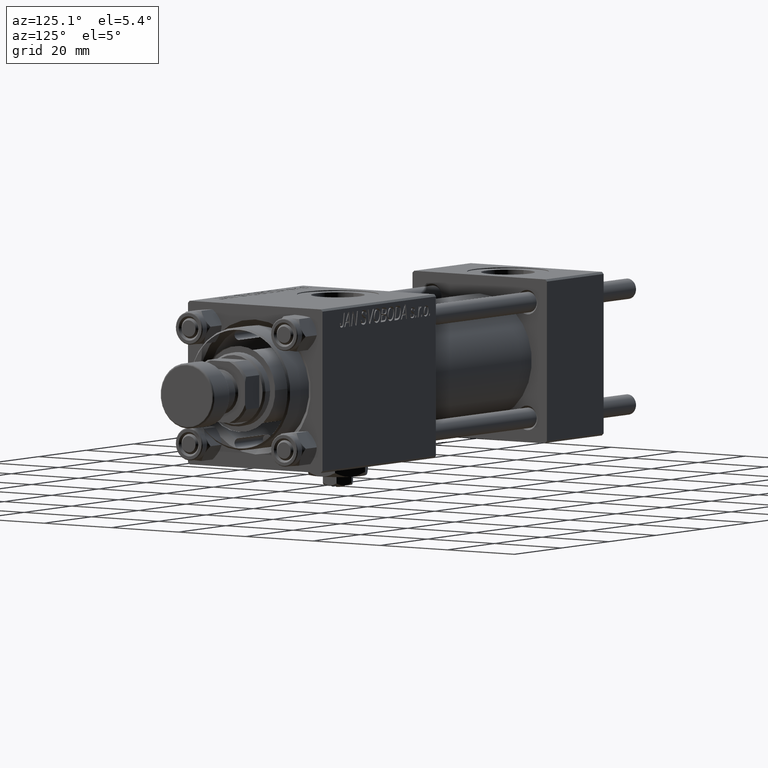
[diagram: clean part render]
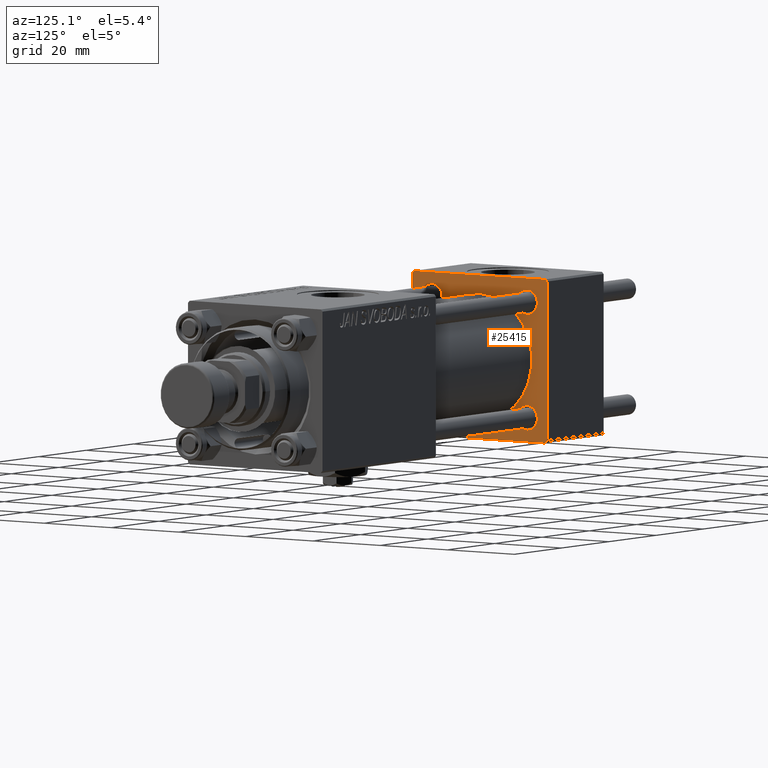
[diagram: same view with one face highlighted and labeled with its STEP entity id]
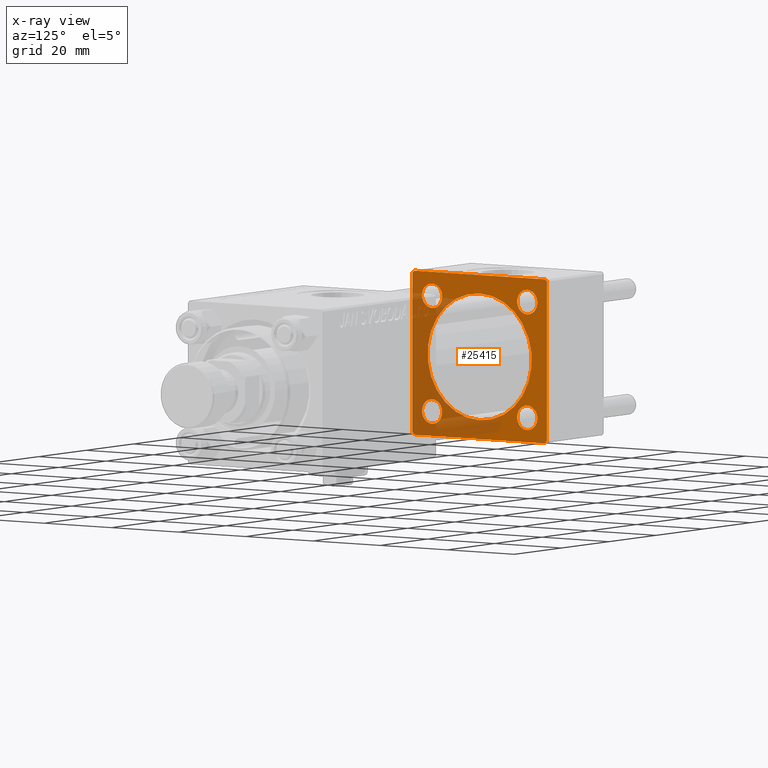
[diagram: x-ray of the same camera — body ghosted, the highlighted face saturated]
A machine part, auxiliary view. The second image highlights one B-rep face of the part: STEP entity #25415.
The next image is the same camera in x-ray: the body ghosted, the highlighted face saturated — about 39% of this face is hidden behind the body in this view.
In plain terms, the highlighted planar face has unit normal (-1, 0, 0).
Its self-contained STEP definition (entity closure, byte-faithful):
#100 = VECTOR ( 'NONE', #8422, 1000.000000000000000 ) ;
#104 = CARTESIAN_POINT ( 'NONE',  ( 24.00000000000000000, 1.898202538678397557E-15, -15.50000000000000000 ) ) ;
#823 = VERTEX_POINT ( 'NONE', #15167 ) ;
#909 = CARTESIAN_POINT ( 'NONE',  ( 24.00000000000000000, 14.14999999999999858, -17.14999999999997726 ) ) ;
#964 = ORIENTED_EDGE ( 'NONE', *, *, #45462, .T. ) ;
#1311 = CARTESIAN_POINT ( 'NONE',  ( 24.00000000000000000, -14.14999999999999503, 14.15000000000000391 ) ) ;
#1431 = LINE ( 'NONE', #5382, #33985 ) ;
#2283 = EDGE_CURVE ( 'NONE', #24229, #8201, #40177, .T. ) ;
#2498 = LINE ( 'NONE', #22729, #16143 ) ;
#2623 = ORIENTED_EDGE ( 'NONE', *, *, #2283, .F. ) ;
#2771 = CIRCLE ( 'NONE', #43944, 2.999999999999976463 ) ;
#3768 = DIRECTION ( 'NONE',  ( -0.000000000000000000, 0.7071067811865524577, 0.7071067811865426878 ) ) ;
#4920 = DIRECTION ( 'NONE',  ( -1.000000000000000000, 0.000000000000000000, -0.000000000000000000 ) ) ;
#5124 = DIRECTION ( 'NONE',  ( 0.000000000000000000, -1.000000000000000000, 1.734723475976807094E-16 ) ) ;
#5177 = FACE_BOUND ( 'NONE', #20168, .T. ) ;
#5213 = ORIENTED_EDGE ( 'NONE', *, *, #50289, .T. ) ;
#5382 = CARTESIAN_POINT ( 'NONE',  ( 24.00000000000000000, 20.00000000000000000, -20.00000000000000711 ) ) ;
#5671 = EDGE_CURVE ( 'NONE', #823, #13284, #14955, .T. ) ;
#5872 = AXIS2_PLACEMENT_3D ( 'NONE', #36185, #43307, #24351 ) ;
#5942 = ORIENTED_EDGE ( 'NONE', *, *, #39097, .T. ) ;
#6604 = DIRECTION ( 'NONE',  ( -1.000000000000000000, -0.000000000000000000, -0.000000000000000000 ) ) ;
#6776 = EDGE_LOOP ( 'NONE', ( #46859, #36655 ) ) ;
#7515 = CIRCLE ( 'NONE', #36903, 3.000000000000000888 ) ;
#7575 = VERTEX_POINT ( 'NONE', #38313 ) ;
#7718 = LINE ( 'NONE', #39786, #49784 ) ;
#8120 = EDGE_LOOP ( 'NONE', ( #30800, #2623 ) ) ;
#8201 = VERTEX_POINT ( 'NONE', #38642 ) ;
#8384 = LINE ( 'NONE', #28109, #39958 ) ;
#8422 = DIRECTION ( 'NONE',  ( 0.000000000000000000, -1.000000000000000000, -2.602085213965210149E-16 ) ) ;
#8436 = ORIENTED_EDGE ( 'NONE', *, *, #37130, .T. ) ;
#9024 = EDGE_CURVE ( 'NONE', #33724, #46362, #7515, .T. ) ;
#9131 = DIRECTION ( 'NONE',  ( -1.000000000000000000, -0.000000000000000000, -0.000000000000000000 ) ) ;
#9301 = AXIS2_PLACEMENT_3D ( 'NONE', #45178, #9131, #25184 ) ;
#9362 = FACE_BOUND ( 'NONE', #8120, .T. ) ;
#9444 = DIRECTION ( 'NONE',  ( -1.000000000000000000, -0.000000000000000000, -0.000000000000000000 ) ) ;
#9998 = VERTEX_POINT ( 'NONE', #13571 ) ;
#10965 = CARTESIAN_POINT ( 'NONE',  ( 24.00000000000000000, 19.50000000000000000, 20.00000000000000000 ) ) ;
#11364 = EDGE_CURVE ( 'NONE', #9998, #7575, #1431, .T. ) ;
#11934 = EDGE_CURVE ( 'NONE', #36800, #28641, #2771, .T. ) ;
#13145 = LINE ( 'NONE', #24758, #25190 ) ;
#13284 = VERTEX_POINT ( 'NONE', #16749 ) ;
#13571 = CARTESIAN_POINT ( 'NONE',  ( 24.00000000000000000, 19.50000000000000711, -20.00000000000000711 ) ) ;
#13580 = EDGE_LOOP ( 'NONE', ( #8436, #13640 ) ) ;
#13640 = ORIENTED_EDGE ( 'NONE', *, *, #9024, .T. ) ;
#13782 = DIRECTION ( 'NONE',  ( 0.000000000000000000, 0.7071067811865401342, -0.7071067811865549002 ) ) ;
#13789 = EDGE_LOOP ( 'NONE', ( #26514, #5942, #47341, #964, #24585, #49182, #43339, #27374 ) ) ;
#14021 = CARTESIAN_POINT ( 'NONE',  ( 24.00000000000000000, -20.00000000000000000, -19.49999999999999645 ) ) ;
#14144 = DIRECTION ( 'NONE',  ( 0.000000000000000000, 0.000000000000000000, 1.000000000000000000 ) ) ;
#14487 = CARTESIAN_POINT ( 'NONE',  ( 24.00000000000000000, 19.50000000000000000, 20.00000000000000000 ) ) ;
#14802 = CARTESIAN_POINT ( 'NONE',  ( 24.00000000000000000, -20.00000000000000355, 19.99999999999998934 ) ) ;
#14868 = DIRECTION ( 'NONE',  ( 0.000000000000000000, 0.000000000000000000, 1.000000000000000000 ) ) ;
#14955 = CIRCLE ( 'NONE', #43636, 3.000000000000000888 ) ;
#14992 = CARTESIAN_POINT ( 'NONE',  ( 24.00000000000000000, 14.14999999999999858, 14.15000000000000036 ) ) ;
#15167 = CARTESIAN_POINT ( 'NONE',  ( 24.00000000000000000, -14.14999999999999503, -17.15000000000000568 ) ) ;
#15194 = CARTESIAN_POINT ( 'NONE',  ( 24.00000000000000000, -14.14999999999999503, 14.15000000000000391 ) ) ;
#15375 = EDGE_CURVE ( 'NONE', #35162, #40289, #20060, .T. ) ;
#15891 = CIRCLE ( 'NONE', #5872, 2.999999999999976463 ) ;
#16143 = VECTOR ( 'NONE', #13782, 1000.000000000000000 ) ;
#16464 = CARTESIAN_POINT ( 'NONE',  ( 24.00000000000000000, -14.14999999999999503, -14.15000000000000391 ) ) ;
#16564 = VERTEX_POINT ( 'NONE', #14487 ) ;
#16749 = CARTESIAN_POINT ( 'NONE',  ( 24.00000000000000000, -14.14999999999999503, -11.15000000000000391 ) ) ;
#17230 = FACE_OUTER_BOUND ( 'NONE', #13789, .T. ) ;
#17485 = DIRECTION ( 'NONE',  ( 0.000000000000000000, 0.000000000000000000, 1.000000000000000000 ) ) ;
#18588 = EDGE_CURVE ( 'NONE', #19560, #36064, #8384, .T. ) ;
#19520 = CARTESIAN_POINT ( 'NONE',  ( 24.00000000000000000, 0.000000000000000000, 0.000000000000000000 ) ) ;
#19560 = VERTEX_POINT ( 'NONE', #24163 ) ;
#20060 = LINE ( 'NONE', #14802, #36473 ) ;
#20168 = EDGE_LOOP ( 'NONE', ( #34428, #5213 ) ) ;
#20833 = CARTESIAN_POINT ( 'NONE',  ( 24.00000000000000000, 14.14999999999999858, 17.14999999999997726 ) ) ;
#21457 = FACE_BOUND ( 'NONE', #43624, .T. ) ;
#21773 = CARTESIAN_POINT ( 'NONE',  ( 24.00000000000000000, -14.14999999999999503, 11.15000000000000391 ) ) ;
#21920 = CIRCLE ( 'NONE', #9301, 2.999999999999976463 ) ;
#22305 = DIRECTION ( 'NONE',  ( -1.000000000000000000, -0.000000000000000000, -0.000000000000000000 ) ) ;
#22407 = AXIS2_PLACEMENT_3D ( 'NONE', #25406, #4920, #41452 ) ;
#22729 = CARTESIAN_POINT ( 'NONE',  ( 24.00000000000000000, -19.50000000000000711, -20.00000000000000000 ) ) ;
#23042 = DIRECTION ( 'NONE',  ( -1.000000000000000000, -0.000000000000000000, -0.000000000000000000 ) ) ;
#23762 = CARTESIAN_POINT ( 'NONE',  ( 24.00000000000000000, 0.000000000000000000, 0.000000000000000000 ) ) ;
#23814 = CARTESIAN_POINT ( 'NONE',  ( 24.00000000000000000, -14.14999999999999503, -14.15000000000000391 ) ) ;
#24163 = CARTESIAN_POINT ( 'NONE',  ( 24.00000000000000000, 20.00000000000000000, 19.49999999999999289 ) ) ;
#24229 = VERTEX_POINT ( 'NONE', #104 ) ;
#24351 = DIRECTION ( 'NONE',  ( 0.000000000000000000, 0.000000000000000000, 1.000000000000000000 ) ) ;
#24585 = ORIENTED_EDGE ( 'NONE', *, *, #34907, .T. ) ;
#24758 = CARTESIAN_POINT ( 'NONE',  ( 24.00000000000000000, -20.00000000000000355, 19.49999999999998224 ) ) ;
#25184 = DIRECTION ( 'NONE',  ( 0.000000000000000000, 0.000000000000000000, 1.000000000000000000 ) ) ;
#25190 = VECTOR ( 'NONE', #41310, 1000.000000000000114 ) ;
#25406 = CARTESIAN_POINT ( 'NONE',  ( 24.00000000000000000, 0.000000000000000000, 0.000000000000000000 ) ) ;
#25415 = ADVANCED_FACE ( 'NONE', ( #5177, #45408, #40933, #21457, #9362, #17230 ), #33284, .F. ) ;
#25724 = CARTESIAN_POINT ( 'NONE',  ( 24.00000000000000000, 14.14999999999999858, 14.15000000000000036 ) ) ;
#26066 = DIRECTION ( 'NONE',  ( 0.000000000000000000, 0.000000000000000000, 1.000000000000000000 ) ) ;
#26514 = ORIENTED_EDGE ( 'NONE', *, *, #11364, .F. ) ;
#27374 = ORIENTED_EDGE ( 'NONE', *, *, #38597, .T. ) ;
#27459 = DIRECTION ( 'NONE',  ( 1.000000000000000000, 0.000000000000000000, 0.000000000000000000 ) ) ;
#27971 = DIRECTION ( 'NONE',  ( 0.000000000000000000, 0.000000000000000000, 1.000000000000000000 ) ) ;
#28109 = CARTESIAN_POINT ( 'NONE',  ( 24.00000000000000000, 20.00000000000000000, 20.00000000000000000 ) ) ;
#28475 = EDGE_CURVE ( 'NONE', #28641, #36800, #34269, .T. ) ;
#28641 = VERTEX_POINT ( 'NONE', #50202 ) ;
#30112 = ORIENTED_EDGE ( 'NONE', *, *, #28475, .T. ) ;
#30800 = ORIENTED_EDGE ( 'NONE', *, *, #31875, .F. ) ;
#30874 = DIRECTION ( 'NONE',  ( 0.000000000000000000, 8.673617379884036705E-17, -1.000000000000000000 ) ) ;
#30962 = DIRECTION ( 'NONE',  ( 0.000000000000000000, -0.7071067811865425767, 0.7071067811865525687 ) ) ;
#31409 = CIRCLE ( 'NONE', #38099, 3.000000000000000888 ) ;
#31458 = EDGE_CURVE ( 'NONE', #46870, #36141, #15891, .T. ) ;
#31875 = EDGE_CURVE ( 'NONE', #8201, #24229, #31888, .T. ) ;
#31888 = CIRCLE ( 'NONE', #45326, 15.50000000000000000 ) ;
#32192 = LINE ( 'NONE', #10965, #48889 ) ;
#32843 = DIRECTION ( 'NONE',  ( 0.000000000000000000, 0.000000000000000000, 1.000000000000000000 ) ) ;
#33029 = EDGE_CURVE ( 'NONE', #44416, #35162, #13145, .T. ) ;
#33284 = PLANE ( 'NONE',  #22407 ) ;
#33724 = VERTEX_POINT ( 'NONE', #43473 ) ;
#33985 = VECTOR ( 'NONE', #5124, 1000.000000000000000 ) ;
#34269 = CIRCLE ( 'NONE', #46077, 2.999999999999976463 ) ;
#34428 = ORIENTED_EDGE ( 'NONE', *, *, #5671, .T. ) ;
#34668 = CARTESIAN_POINT ( 'NONE',  ( 24.00000000000000000, -20.00000000000000355, 19.49999999999998224 ) ) ;
#34907 = EDGE_CURVE ( 'NONE', #16564, #44416, #51837, .T. ) ;
#35162 = VERTEX_POINT ( 'NONE', #34668 ) ;
#35864 = CARTESIAN_POINT ( 'NONE',  ( 24.00000000000000000, -19.49999999999999289, 19.99999999999998934 ) ) ;
#36064 = VERTEX_POINT ( 'NONE', #45222 ) ;
#36141 = VERTEX_POINT ( 'NONE', #41274 ) ;
#36185 = CARTESIAN_POINT ( 'NONE',  ( 24.00000000000000000, 14.14999999999999858, -14.15000000000000036 ) ) ;
#36473 = VECTOR ( 'NONE', #30874, 1000.000000000000000 ) ;
#36655 = ORIENTED_EDGE ( 'NONE', *, *, #38194, .T. ) ;
#36800 = VERTEX_POINT ( 'NONE', #20833 ) ;
#36903 = AXIS2_PLACEMENT_3D ( 'NONE', #15194, #22305, #38345 ) ;
#36976 = CIRCLE ( 'NONE', #50442, 3.000000000000000888 ) ;
#37130 = EDGE_CURVE ( 'NONE', #46362, #33724, #36976, .T. ) ;
#38099 = AXIS2_PLACEMENT_3D ( 'NONE', #16464, #44635, #17485 ) ;
#38194 = EDGE_CURVE ( 'NONE', #36141, #46870, #21920, .T. ) ;
#38313 = CARTESIAN_POINT ( 'NONE',  ( 24.00000000000000000, -19.50000000000000711, -20.00000000000000000 ) ) ;
#38345 = DIRECTION ( 'NONE',  ( 0.000000000000000000, 0.000000000000000000, 1.000000000000000000 ) ) ;
#38597 = EDGE_CURVE ( 'NONE', #40289, #7575, #2498, .T. ) ;
#38642 = CARTESIAN_POINT ( 'NONE',  ( 24.00000000000000000, 0.000000000000000000, 15.50000000000000000 ) ) ;
#39097 = EDGE_CURVE ( 'NONE', #9998, #36064, #7718, .T. ) ;
#39786 = CARTESIAN_POINT ( 'NONE',  ( 24.00000000000000000, 20.00000000000000000, -19.50000000000002132 ) ) ;
#39958 = VECTOR ( 'NONE', #43892, 1000.000000000000000 ) ;
#40177 = CIRCLE ( 'NONE', #46040, 15.50000000000000000 ) ;
#40289 = VERTEX_POINT ( 'NONE', #14021 ) ;
#40933 = FACE_BOUND ( 'NONE', #13580, .T. ) ;
#41274 = CARTESIAN_POINT ( 'NONE',  ( 24.00000000000000000, 14.14999999999999858, -11.15000000000002700 ) ) ;
#41310 = DIRECTION ( 'NONE',  ( -0.000000000000000000, -0.7071067811865500152, -0.7071067811865451302 ) ) ;
#41452 = DIRECTION ( 'NONE',  ( -0.000000000000000000, 0.000000000000000000, 1.000000000000000000 ) ) ;
#43307 = DIRECTION ( 'NONE',  ( -1.000000000000000000, -0.000000000000000000, -0.000000000000000000 ) ) ;
#43339 = ORIENTED_EDGE ( 'NONE', *, *, #15375, .T. ) ;
#43473 = CARTESIAN_POINT ( 'NONE',  ( 24.00000000000000000, -14.14999999999999503, 17.15000000000000568 ) ) ;
#43624 = EDGE_LOOP ( 'NONE', ( #30112, #49113 ) ) ;
#43636 = AXIS2_PLACEMENT_3D ( 'NONE', #23814, #23042, #14868 ) ;
#43892 = DIRECTION ( 'NONE',  ( 0.000000000000000000, 0.000000000000000000, -1.000000000000000000 ) ) ;
#43944 = AXIS2_PLACEMENT_3D ( 'NONE', #14992, #6604, #26066 ) ;
#44416 = VERTEX_POINT ( 'NONE', #35864 ) ;
#44635 = DIRECTION ( 'NONE',  ( -1.000000000000000000, -0.000000000000000000, -0.000000000000000000 ) ) ;
#45178 = CARTESIAN_POINT ( 'NONE',  ( 24.00000000000000000, 14.14999999999999858, -14.15000000000000036 ) ) ;
#45222 = CARTESIAN_POINT ( 'NONE',  ( 24.00000000000000000, 20.00000000000000000, -19.50000000000002132 ) ) ;
#45326 = AXIS2_PLACEMENT_3D ( 'NONE', #23762, #27459, #27971 ) ;
#45408 = FACE_BOUND ( 'NONE', #6776, .T. ) ;
#45462 = EDGE_CURVE ( 'NONE', #19560, #16564, #32192, .T. ) ;
#45730 = DIRECTION ( 'NONE',  ( -1.000000000000000000, -0.000000000000000000, -0.000000000000000000 ) ) ;
#46040 = AXIS2_PLACEMENT_3D ( 'NONE', #19520, #47168, #46643 ) ;
#46077 = AXIS2_PLACEMENT_3D ( 'NONE', #25724, #45730, #32843 ) ;
#46362 = VERTEX_POINT ( 'NONE', #21773 ) ;
#46643 = DIRECTION ( 'NONE',  ( 0.000000000000000000, 0.000000000000000000, 1.000000000000000000 ) ) ;
#46859 = ORIENTED_EDGE ( 'NONE', *, *, #31458, .T. ) ;
#46870 = VERTEX_POINT ( 'NONE', #909 ) ;
#47168 = DIRECTION ( 'NONE',  ( 1.000000000000000000, 0.000000000000000000, 0.000000000000000000 ) ) ;
#47341 = ORIENTED_EDGE ( 'NONE', *, *, #18588, .F. ) ;
#48675 = CARTESIAN_POINT ( 'NONE',  ( 24.00000000000000000, 20.00000000000000000, 20.00000000000000000 ) ) ;
#48889 = VECTOR ( 'NONE', #30962, 999.9999999999998863 ) ;
#49113 = ORIENTED_EDGE ( 'NONE', *, *, #11934, .T. ) ;
#49182 = ORIENTED_EDGE ( 'NONE', *, *, #33029, .T. ) ;
#49784 = VECTOR ( 'NONE', #3768, 1000.000000000000000 ) ;
#50202 = CARTESIAN_POINT ( 'NONE',  ( 24.00000000000000000, 14.14999999999999858, 11.15000000000002700 ) ) ;
#50289 = EDGE_CURVE ( 'NONE', #13284, #823, #31409, .T. ) ;
#50442 = AXIS2_PLACEMENT_3D ( 'NONE', #1311, #9444, #14144 ) ;
#51837 = LINE ( 'NONE', #48675, #100 ) ;